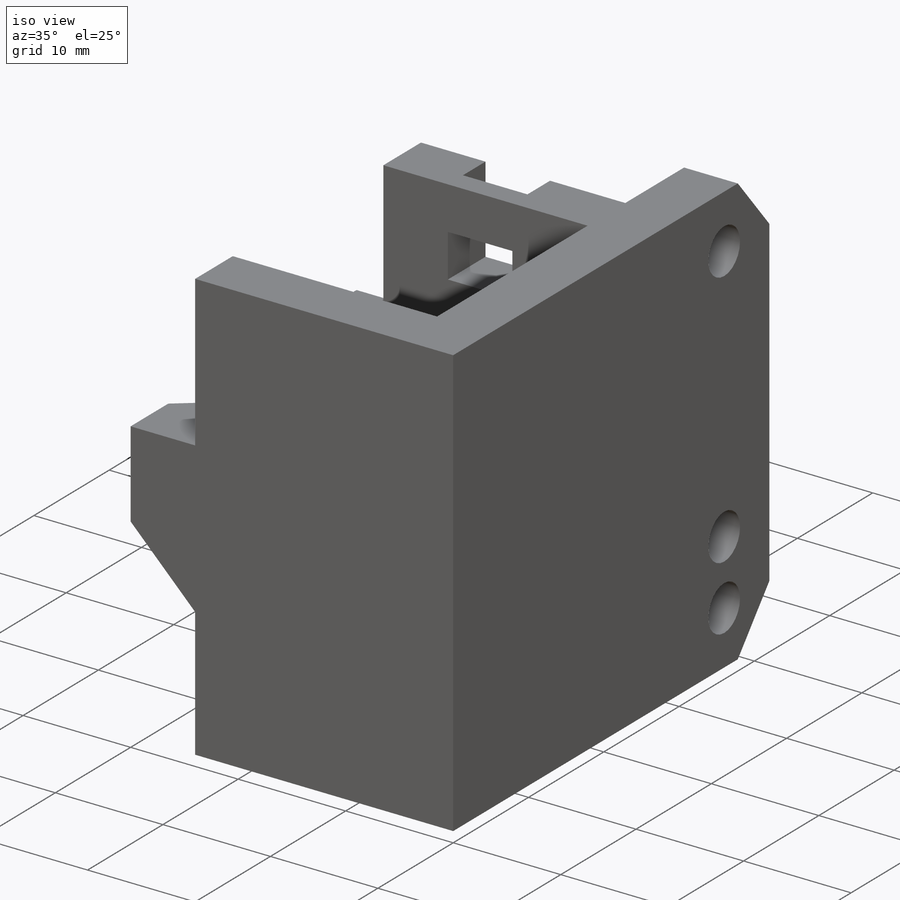
[diagram: iso view]
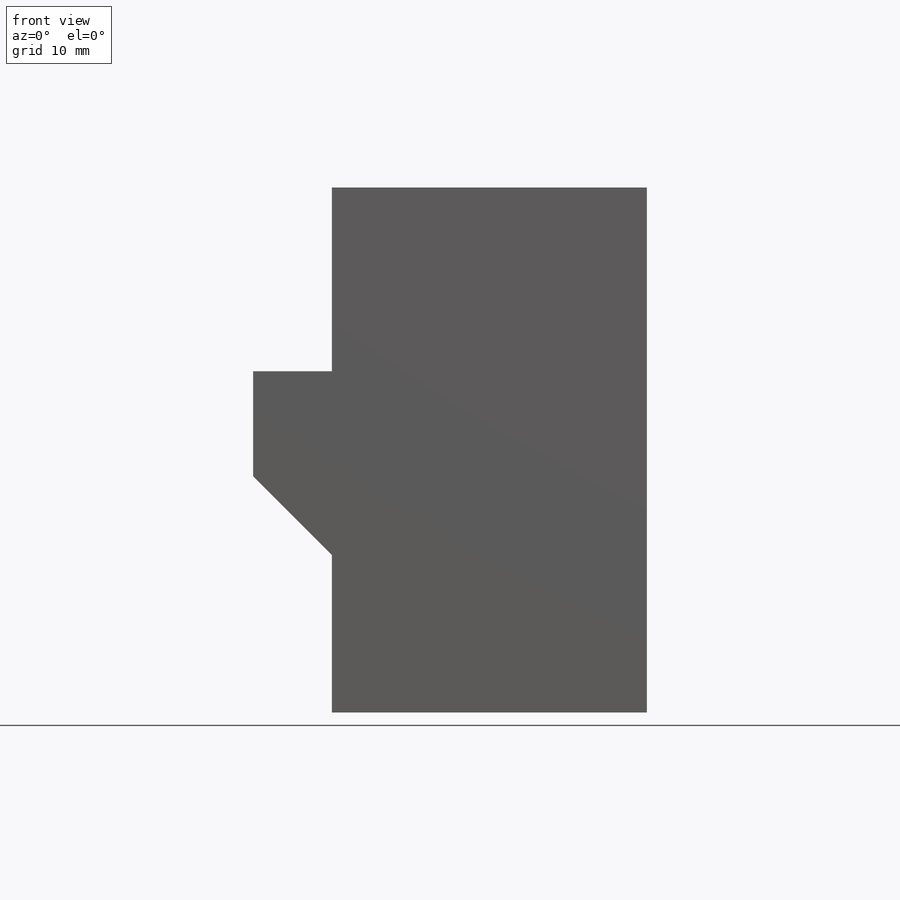
[diagram: front view]
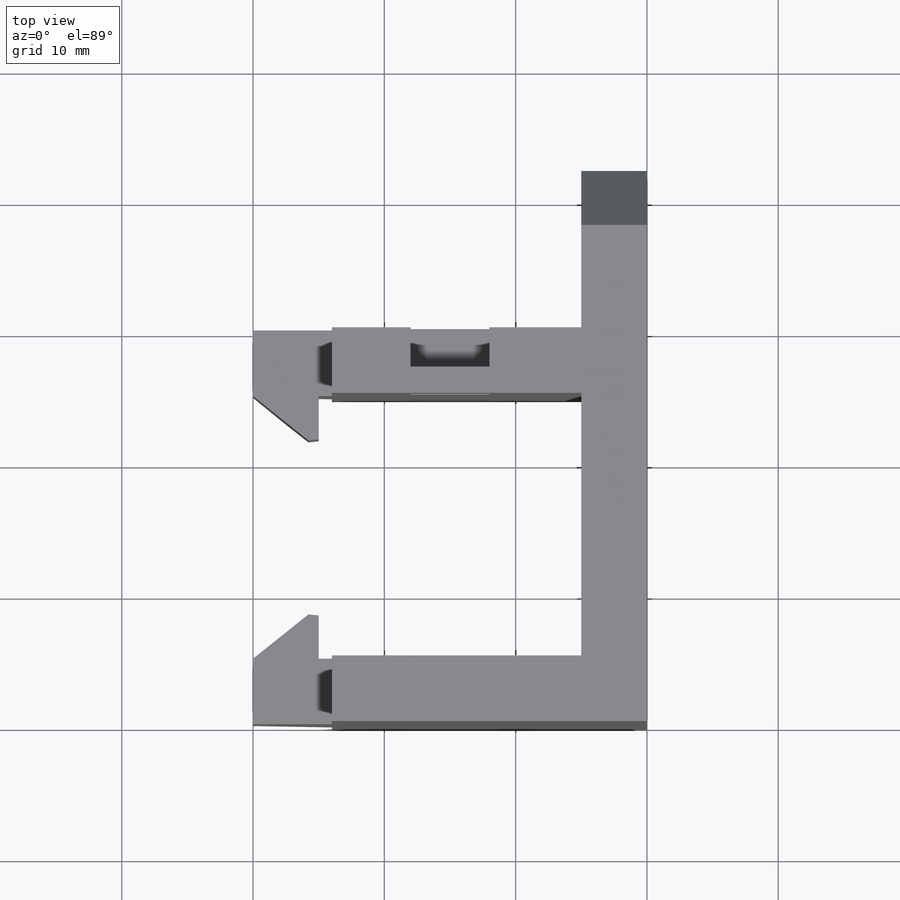
[diagram: top view]
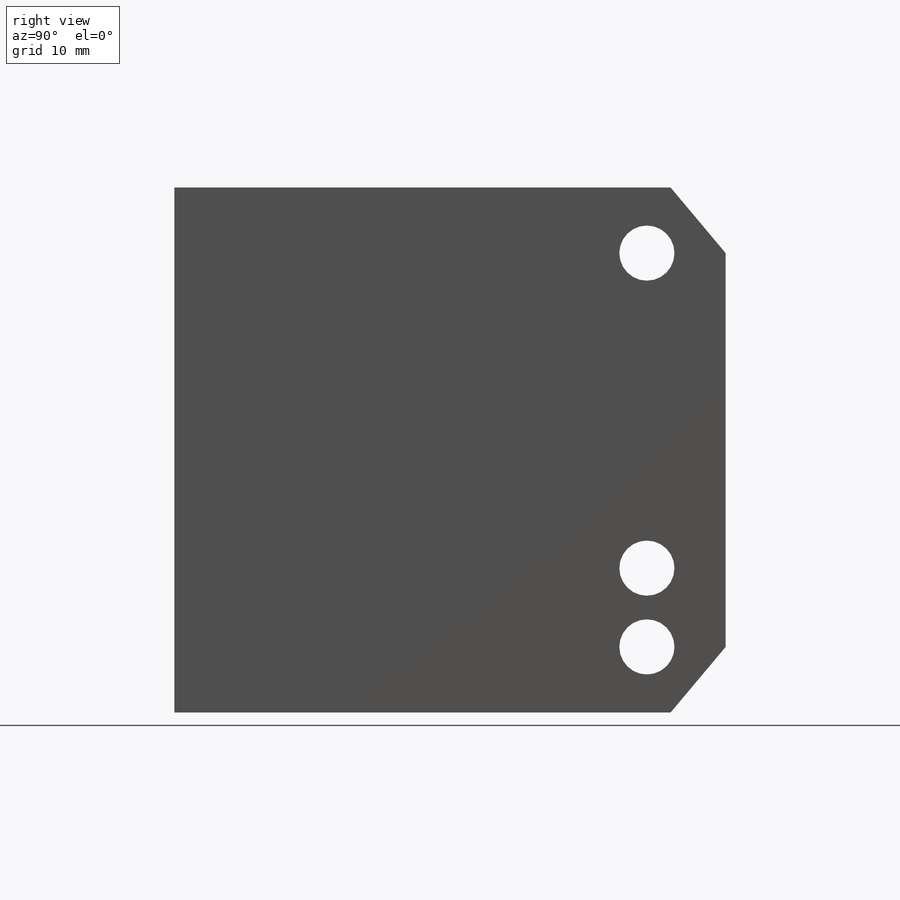
[diagram: right view]
SOLIDWORKS PART (.sldprt)
format: sldprt  version: not decoded by parser v0  size: 559,104 bytes
history: native  units: mm
features: sketch x11, cut_extrude x9, chamfer x3, extrude x2, material x1 (+11 scaffold rows collapsed)
feature tree (37):
  scaffold x11  (default folders/planes/origin — collapsed)
  material  "Material <not specified>"
  sketch  "Sketch1"  dims[D1=30.0mm D2=30.0mm]
  extrude  "Boss-Extrude1"  Depth=40mm
  sketch  "Sketch2"  dims[D1=20.0mm D2=20.0mm D3=5.0mm D4=5.0mm]
  cut_extrude  "Cut-Extrude1"  [1 undecoded]
  sketch  "Sketch4"  dims[c1.D1=6.0mm c1.D2=6.0mm c1.D3=7.0mm c1.D4=~3.545528mm c1.D5=7.0mm c1.D6=4.0mm c1.D7=4.0mm c2.D4=4.0mm c2.D8=4.0mm]
  cut_extrude  "Cut-Extrude2"  [1 undecoded]
  sketch  "Sketch6"
  cut_extrude  "Cut-Extrude3"  Depth=3mm
  sketch  "Sketch8"  dims[D1=5.0mm]
  extrude  "Boss-Extrude2"  Depth=12mm
  sketch  "Sketch9"  dims[D1=4.2mm D2=4.2mm D7=4.2mm D3=30.0mm D4=5.0mm D5=6.0mm D6=6.0mm D8=24.0mm D9=6.0mm]
  cut_extrude  "Cut-Extrude5"  [1 undecoded]
  chamfer  "Chamfer2"  Distance=5mm Angle=40deg
  sketch  "Sketch10"  dims[D1=20.0mm D2=12.0mm D3=4.0mm D4=0.0mm]
  cut_extrude  "Cut-Extrude6"  [1 undecoded]
  chamfer  "Chamfer3"  Distance=1mm Angle=45deg
  sketch  "Sketch11"  dims[D1=6.0mm]
  cut_extrude  "Cut-Extrude7"  Depth=18mm
  sketch  "Sketch12"  dims[D1=6.0mm]
  cut_extrude  "Cut-Extrude8"  Depth=14mm
  chamfer  "Chamfer4"  Distance=6mm Angle=45deg
  sketch  "Sketch13"  dims[D1=5.0mm D2=4.0mm]
  cut_extrude  "Cut-Extrude9"  [1 undecoded]
  sketch  "Sketch14"  dims[D1=4.0mm D2=5.0mm]
  cut_extrude  "Cut-Extrude10"  [1 undecoded]
decode coverage: 18 of 25 modeling features carry decoded parameters
note: ~ marks probable driven/reference dimensions
note: 6 parameter values undecoded
summary: no parameter record found for 6 features
note: suppression state not decoded; provenance and decode notes live in map.json
